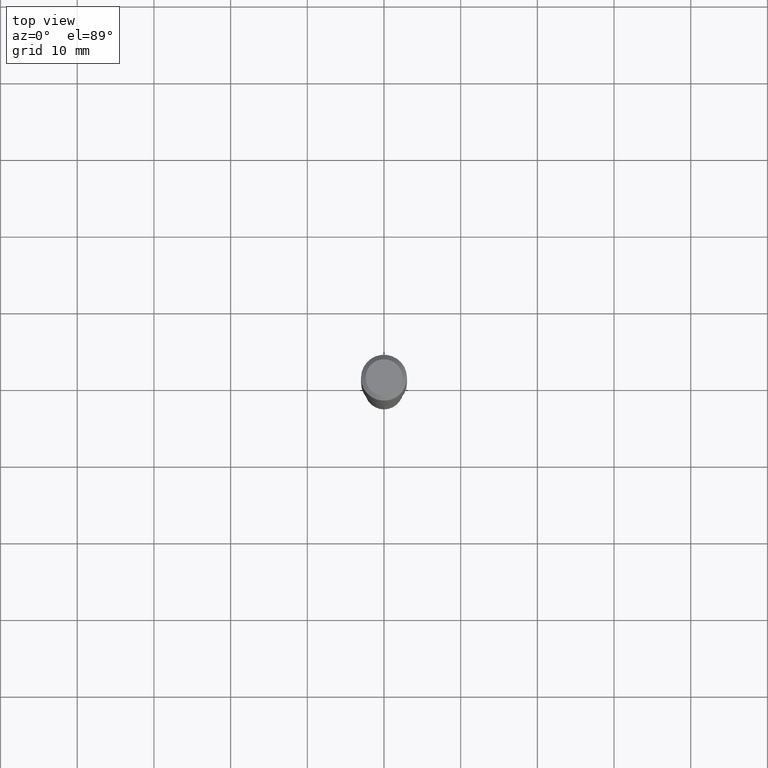
[diagram: clean part render]
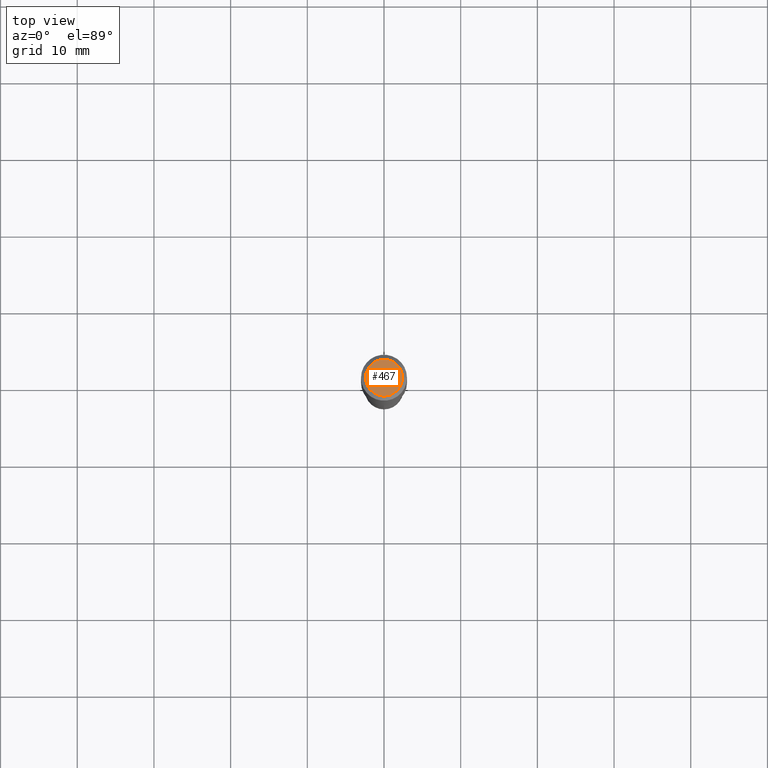
[diagram: same view with one face highlighted and labeled with its STEP entity id]
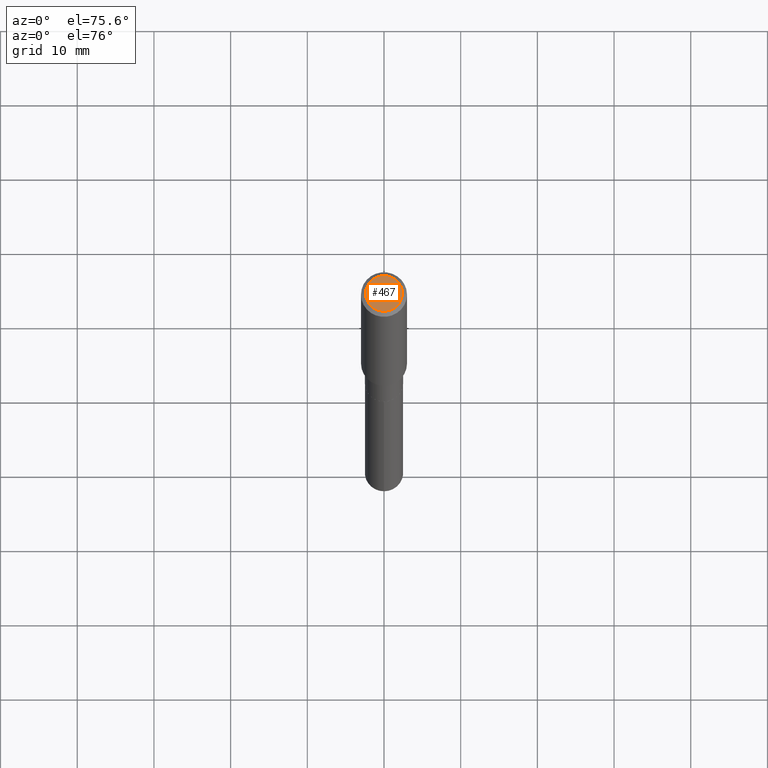
[diagram: same view with one face highlighted and labeled with its STEP entity id]
A machine part, top view. The second image highlights one B-rep face of the part: STEP entity #467.
A second angle (auxiliary view) of the same face is appended — the face is thin or edge-on in the first view.
In plain terms, the highlighted planar face has unit normal (0, -0, -1).
Its self-contained STEP definition (entity closure, byte-faithful):
#33 = CIRCLE ( 'NONE', #282, 0.09447999999999998066 ) ;
#36 = CARTESIAN_POINT ( 'NONE',  ( 4.716267017698007905E-46, -6.733579360998555036E-32, -1.928573779297252010E-17 ) ) ;
#72 = CIRCLE ( 'NONE', #196, 0.09447999999999998066 ) ;
#74 = CARTESIAN_POINT ( 'NONE',  ( 0.09447999999999998066, -7.704367267948738690E-16, -1.928573779296752193E-17 ) ) ;
#86 = AXIS2_PLACEMENT_3D ( 'NONE', #98, #241, #403 ) ;
#93 = FACE_OUTER_BOUND ( 'NONE', #407, .T. ) ;
#98 = CARTESIAN_POINT ( 'NONE',  ( 2.358133508849003952E-46, -3.366789680499277518E-32, -9.642868896486260050E-18 ) ) ;
#176 = DIRECTION ( 'NONE',  ( -2.445468806185136597E-29, 3.491481338843145583E-15, 1.000000000000000000 ) ) ;
#191 = EDGE_CURVE ( 'NONE', #205, #374, #33, .T. ) ;
#196 = AXIS2_PLACEMENT_3D ( 'NONE', #436, #226, #396 ) ;
#205 = VERTEX_POINT ( 'NONE', #74 ) ;
#226 = DIRECTION ( 'NONE',  ( -2.445468806185136597E-29, 3.491481338843145583E-15, 1.000000000000000000 ) ) ;
#241 = DIRECTION ( 'NONE',  ( 2.438088387897960049E-29, -3.491481338843145188E-15, -1.000000000000000000 ) ) ;
#244 = CARTESIAN_POINT ( 'NONE',  ( -0.09447999999999998066, 7.009847083995354710E-16, -1.928573779297727792E-17 ) ) ;
#282 = AXIS2_PLACEMENT_3D ( 'NONE', #36, #176, #343 ) ;
#316 = ORIENTED_EDGE ( 'NONE', *, *, #191, .T. ) ;
#320 = EDGE_CURVE ( 'NONE', #374, #205, #72, .T. ) ;
#343 = DIRECTION ( 'NONE',  ( 1.000000000000000000, -6.982962677686267499E-15, 4.875432709231658792E-29 ) ) ;
#374 = VERTEX_POINT ( 'NONE', #244 ) ;
#396 = DIRECTION ( 'NONE',  ( 1.000000000000000000, -6.982962677686267499E-15, 4.875432709231658792E-29 ) ) ;
#403 = DIRECTION ( 'NONE',  ( -1.000000000000000000, 6.982962677686265922E-15, -4.876176775795935793E-29 ) ) ;
#407 = EDGE_LOOP ( 'NONE', ( #409, #316 ) ) ;
#409 = ORIENTED_EDGE ( 'NONE', *, *, #320, .T. ) ;
#436 = CARTESIAN_POINT ( 'NONE',  ( 4.716267017698007905E-46, -6.733579360998555036E-32, -1.928573779297252010E-17 ) ) ;
#451 = PLANE ( 'NONE',  #86 ) ;
#467 = ADVANCED_FACE ( 'NONE', ( #93 ), #451, .F. ) ;